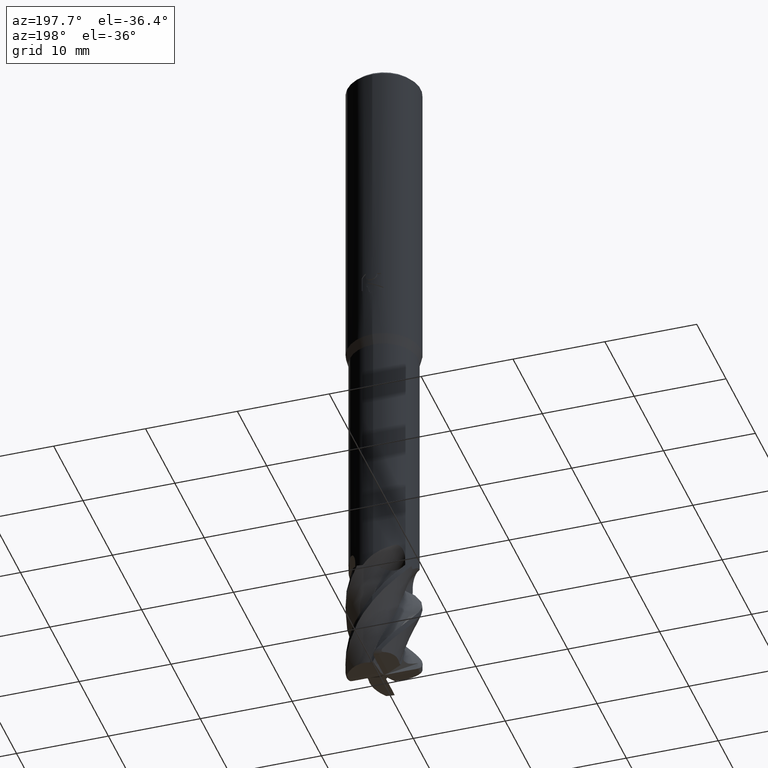
[diagram: clean part render]
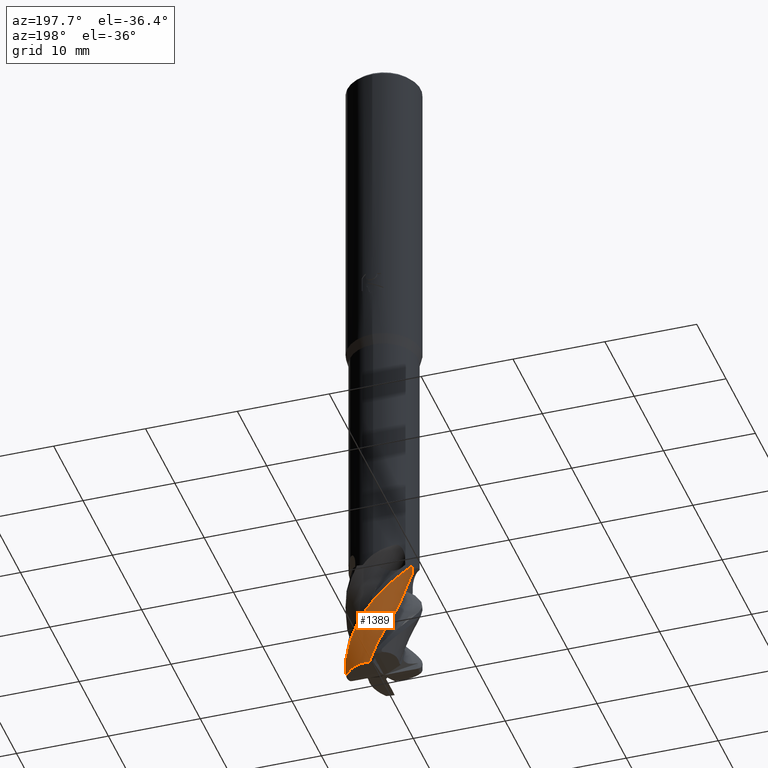
[diagram: same view with one face highlighted and labeled with its STEP entity id]
A machine part, auxiliary view. The second image highlights one B-rep face of the part: STEP entity #1389.
In plain terms, the highlighted face is a freeform B-spline surface patch.
Its self-contained STEP definition (entity closure, byte-faithful):
#539=VERTEX_POINT('',#1529);
#595=VERTEX_POINT('',#1587);
#627=EDGE_CURVE('',#1239,#539,#1622,.T.);
#869=EDGE_CURVE('',#1009,#1399,#1883,.T.);
#927=EDGE_CURVE('',#1377,#1239,#1947,.T.);
#1009=VERTEX_POINT('',#2040);
#1015=EDGE_CURVE('',#595,#1377,#2046,.T.);
#1141=VERTEX_POINT('',#2183);
#1149=EDGE_CURVE('',#1399,#1141,#2191,.T.);
#1199=EDGE_CURVE('',#1009,#539,#2243,.T.);
#1221=EDGE_CURVE('',#1141,#595,#2267,.T.);
#1239=VERTEX_POINT('',#2285);
#1377=VERTEX_POINT('',#2445);
#1389=ADVANCED_FACE('',(#2458),#2459,.T.);
#1399=VERTEX_POINT('',#2469);
#1529=CARTESIAN_POINT('',(-2.02177351185507,-0.841296239243843,-63.0));
#1587=CARTESIAN_POINT('',(-2.59804523836854E-009,3.99994607672928,-68.2988238669397));
#1622=B_SPLINE_CURVE_WITH_KNOTS('',3,(#3459,#3460,#3461,#3462,#3463,#3464,#3465,#3466),.UNSPECIFIED.,.F.,.F.,(4,2,2,4),(0.0,1.24316628872534,2.39651484077598,3.5498294685382),.UNSPECIFIED.);
#1883=B_SPLINE_CURVE_WITH_KNOTS('',3,(#5200,#5201,#5202,#5203,#5204,#5205,#5206,#5207),.UNSPECIFIED.,.F.,.F.,(4,2,2,4),(0.0,1.08865642506025,2.10408348581327,3.23014612927801),.UNSPECIFIED.);
#1947=B_SPLINE_CURVE_WITH_KNOTS('',3,(#5675,#5676,#5677,#5678,#5679,#5680,#5681,#5682),.UNSPECIFIED.,.F.,.F.,(4,2,2,4),(0.0,1.24316628872534,2.39651484077598,3.5498294685382),.UNSPECIFIED.);
#2040=CARTESIAN_POINT('',(0.952778940918722,1.97351294023017,-74.5356994333427));
#2046=B_SPLINE_CURVE_WITH_KNOTS('',3,(#6212,#6213,#6214,#6215,#6216,#6217,#6218,#6219,#6220,#6221,#6222,#6223,#6224,#6225,#6226,#6227,#6228,#6229,#6230,#6231,#6232,#6233,#6234,#6235),.UNSPECIFIED.,.F.,.F.,(4,2,2,2,2,2,2,2,2,2,2,4),(0.0,1.93728681948134,2.38966177563037,3.21723639946385,3.8411802654812,4.15143110464342,4.42447861892624,4.59394454979749,4.72281081796028,4.83222102111246,4.91998672967652,5.0074457602331),.UNSPECIFIED.);
#2183=CARTESIAN_POINT('',(3.85771103230142,1.0573862072393,-74.5));
#2191=B_SPLINE_CURVE_WITH_KNOTS('',3,(#6816,#6817,#6818,#6819,#6820,#6821,#6822,#6823,#6824,#6825,#6826,#6827,#6828,#6829,#6830,#6831,#6832,#6833,#6834,#6835),.UNSPECIFIED.,.F.,.F.,(4,2,2,2,2,2,2,2,2,4),(0.0,0.552379909873413,1.06509052213065,1.39206714543016,1.59261688957467,1.72125507072349,1.86937893980482,1.99092780579738,2.05068872416879,2.10153383045008),.UNSPECIFIED.);
#2243=B_SPLINE_CURVE_WITH_KNOTS('',3,(#6985,#6986,#6987,#6988,#6989,#6990,#6991,#6992,#6993,#6994,#6995,#6996,#6997,#6998,#6999,#7000,#7001,#7002,#7003,#7004,#7005,#7006,#7007,#7008,#7009,#7010,#7011,#7012,#7013,#7014,#7015,#7016,#7017,#7018,#7019,#7020,#7021,#7022,#7023,#7024),.UNSPECIFIED.,.F.,.F.,(4,1,2,2,1,2,1,1,2,1,1,2,1,1,1,2,1,1,2,1,1,2,1,1,1,2,1,1,4),(0.0,0.439032880743634,0.878065761487268,1.75613152297454,2.63419728446181,3.51226304594907,4.39032880743634,5.70742744966724,7.02452609189815,8.34162473412905,9.65872337635995,10.5367891378472,11.4148548993345,12.2929206608218,13.170986422309,14.0490521837963,14.9271179452836,16.2442165875145,17.5613152297454,18.8784138719763,20.1955125142072,21.0735782756944,21.9516440371817,22.829709798669,23.7077755601562,24.5858413216435,25.4639070831308,26.7810057253617,28.0981043675926),.UNSPECIFIED.);
#2267=B_SPLINE_CURVE_WITH_KNOTS('',3,(#7074,#7075,#7076,#7077,#7078,#7079,#7080,#7081,#7082,#7083,#7084,#7085,#7086,#7087,#7088,#7089,#7090,#7091,#7092,#7093,#7094,#7095,#7096,#7097),.UNSPECIFIED.,.F.,.F.,(4,2,2,2,2,2,2,2,2,2,2,4),(0.0,1.93728681948134,2.38966177563037,3.21723639946385,3.8411802654812,4.15143110464342,4.42447861892624,4.59394454979749,4.72281081796028,4.83222102111246,4.91998672967652,5.0074457602331),.UNSPECIFIED.);
#2285=CARTESIAN_POINT('',(-2.63743713482291,-0.362782698581465,-63.0));
#2445=CARTESIAN_POINT('',(-3.57235734302409,1.79929514636751,-63.0));
#2458=FACE_OUTER_BOUND('',#8759,.T.);
#2459=B_SPLINE_SURFACE_WITH_KNOTS('',3,3,((#8760,#8761,#8762,#8763,#8764,#8765,#8766,#8767,#8768,#8769,#8770,#8771,#8772,#8773,#8774,#8775,#8776,#8777,#8778,#8779,#8780,#8781,#8782,#8783,#8784,#8785,#8786,#8787,#8788,#8789,#8790,#8791,#8792,#8793,#8794,#8795,#8796,#8797,#8798,#8799),(#8800,#8801,#8802,#8803,#8804,#8805,#8806,#8807,#8808,#8809,#8810,#8811,#8812,#8813,#8814,#8815,#8816,#8817,#8818,#8819,#8820,#8821,#8822,#8823,#8824,#8825,#8826,#8827,#8828,#8829,#8830,#8831,#8832,#8833,#8834,#8835,#8836,#8837,#8838,#8839),(#8840,#8841,#8842,#8843,#8844,#8845,#8846,#8847,#8848,#8849,#8850,#8851,#8852,#8853,#8854,#8855,#8856,#8857,#8858,#8859,#8860,#8861,#8862,#8863,#8864,#8865,#8866,#8867,#8868,#8869,#8870,#8871,#8872,#8873,#8874,#8875,#8876,#8877,#8878,#8879),(#8880,#8881,#8882,#8883,#8884,#8885,#8886,#8887,#8888,#8889,#8890,#8891,#8892,#8893,#8894,#8895,#8896,#8897,#8898,#8899,#8900,#8901,#8902,#8903,#8904,#8905,#8906,#8907,#8908,#8909,#8910,#8911,#8912,#8913,#8914,#8915,#8916,#8917,#8918,#8919),(#8920,#8921,#8922,#8923,#8924,#8925,#8926,#8927,#8928,#8929,#8930,#8931,#8932,#8933,#8934,#8935,#8936,#8937,#8938,#8939,#8940,#8941,#8942,#8943,#8944,#8945,#8946,#8947,#8948,#8949,#8950,#8951,#8952,#8953,#8954,#8955,#8956,#8957,#8958,#8959),(#8960,#8961,#8962,#8963,#8964,#8965,#8966,#8967,#8968,#8969,#8970,#8971,#8972,#8973,#8974,#8975,#8976,#8977,#8978,#8979,#8980,#8981,#8982,#8983,#8984,#8985,#8986,#8987,#8988,#8989,#8990,#8991,#8992,#8993,#8994,#8995,#8996,#8997,#8998,#8999)),.UNSPECIFIED.,.F.,.F.,.F.,(4,1,1,4),(4,1,2,2,1,2,1,1,2,1,1,2,1,1,1,2,1,1,2,1,1,2,1,1,1,2,1,1,4),(-1.11221997675071,-0.695137485469193,-0.278054994187677,0.0),(0.0,0.439032880743634,0.878065761487268,1.75613152297454,2.63419728446181,3.51226304594907,4.39032880743634,5.70742744966724,7.02452609189815,8.34162473412905,9.65872337635995,10.5367891378472,11.4148548993345,12.2929206608218,13.170986422309,14.0490521837963,14.9271179452836,16.2442165875145,17.5613152297454,18.8784138719763,20.1955125142072,21.0735782756944,21.9516440371817,22.829709798669,23.7077755601562,24.5858413216435,25.4639070831308,26.7810057253617,28.0981043675926),.UNSPECIFIED.);
#2469=CARTESIAN_POINT('',(3.72293093051326,0.996993932438083,-74.8529896927436));
#3459=CARTESIAN_POINT('',(-3.56366989385119,2.14402707640686,-63.0));
#3460=CARTESIAN_POINT('',(-3.59653839750445,1.73094390282993,-63.0));
#3461=CARTESIAN_POINT('',(-3.54840981697179,1.31539089322412,-63.0));
#3462=CARTESIAN_POINT('',(-3.30470197086095,0.554635919955544,-63.0));
#3463=CARTESIAN_POINT('',(-3.12203290532083,0.212781753843216,-63.0));
#3464=CARTESIAN_POINT('',(-2.64367594059889,-0.389183256803379,-63.0));
#3465=CARTESIAN_POINT('',(-2.35192789122173,-0.644342803606159,-63.0));
#3466=CARTESIAN_POINT('',(-2.02177351185507,-0.841296239243843,-63.0));
#5200=CARTESIAN_POINT('',(0.952778940938991,1.97351294021357,-74.5356994333716));
#5201=CARTESIAN_POINT('',(1.30720961290021,2.04757799987166,-74.511634236686));
#5202=CARTESIAN_POINT('',(1.67043789055814,2.0572321850472,-74.5084974018382));
#5203=CARTESIAN_POINT('',(2.35993847755394,1.93925552037634,-74.5468303438856));
#5204=CARTESIAN_POINT('',(2.67572733100251,1.82267529283549,-74.584709555919));
#5205=CARTESIAN_POINT('',(3.28154787893602,1.46485967209924,-74.700970898716));
#5206=CARTESIAN_POINT('',(3.5552084499316,1.21738515390495,-74.7813802440122));
#5207=CARTESIAN_POINT('',(3.7767541407904,0.928998976948296,-74.8750825930267));
#5675=CARTESIAN_POINT('',(-3.56366989385119,2.14402707640686,-63.0));
#5676=CARTESIAN_POINT('',(-3.59653839750445,1.73094390282993,-63.0));
#5677=CARTESIAN_POINT('',(-3.54840981697179,1.31539089322412,-63.0));
#5678=CARTESIAN_POINT('',(-3.30470197086095,0.554635919955544,-63.0));
#5679=CARTESIAN_POINT('',(-3.12203290532083,0.212781753843216,-63.0));
#5680=CARTESIAN_POINT('',(-2.64367594059889,-0.389183256803379,-63.0));
#5681=CARTESIAN_POINT('',(-2.35192789122173,-0.644342803606159,-63.0));
#5682=CARTESIAN_POINT('',(-2.02177351185507,-0.841296239243843,-63.0));
#6212=CARTESIAN_POINT('',(3.85771103230142,1.05738620723929,-74.5));
#6213=CARTESIAN_POINT('',(3.74964676967801,1.45162561306871,-74.0000936893054));
#6214=CARTESIAN_POINT('',(3.58027474018618,1.83237321266755,-73.4911276210475));
#6215=CARTESIAN_POINT('',(3.29771435931284,2.26595803283996,-72.8831146255752));
#6216=CARTESIAN_POINT('',(3.2408537829037,2.34661969245941,-72.7685640362396));
#6217=CARTESIAN_POINT('',(3.07032548675441,2.5702171457404,-72.4463390567113));
#6218=CARTESIAN_POINT('',(2.81634802634202,2.8900833146096,-71.992152280877));
#6219=CARTESIAN_POINT('',(2.06580604276021,3.44876083431224,-70.8575235774745));
#6220=CARTESIAN_POINT('',(1.70775137333358,3.63968005745669,-70.3586530441205));
#6221=CARTESIAN_POINT('',(1.135728313674,3.8406151696471,-69.63118538843));
#6222=CARTESIAN_POINT('',(0.938510827758468,3.8937952384931,-69.3911246173984));
#6223=CARTESIAN_POINT('',(0.556183527181209,3.96527726549848,-68.945535600067));
#6224=CARTESIAN_POINT('',(0.153476436419765,4.03241734332696,-68.4915560964895));
#6225=CARTESIAN_POINT('',(-0.70688773745809,3.95086773147246,-67.4432634608565));
#6226=CARTESIAN_POINT('',(-1.03112782071569,3.87888201892544,-67.0349877150578));
#6227=CARTESIAN_POINT('',(-1.57978239104238,3.68334354186362,-66.3282696240446));
#6228=CARTESIAN_POINT('',(-1.81184541925128,3.57546457647191,-66.0242045653948));
#6229=CARTESIAN_POINT('',(-2.22484923324286,3.33135780768717,-65.4713666629756));
#6230=CARTESIAN_POINT('',(-2.4436218877839,3.18213909987463,-65.175877682663));
#6231=CARTESIAN_POINT('',(-2.86279314779917,2.80477204052103,-64.5060816305059));
#6232=CARTESIAN_POINT('',(-3.03136925629849,2.62121939503193,-64.2037219182236));
#6233=CARTESIAN_POINT('',(-3.32963063495791,2.2300415047218,-63.6014822766402));
#6234=CARTESIAN_POINT('',(-3.46089908854244,2.02059242011861,-63.298913359751));
#6235=CARTESIAN_POINT('',(-3.57235734302408,1.79929514636758,-63.0));
#6816=CARTESIAN_POINT('',(2.72052942918702,1.66044897743041,-74.8900880121276));
#6817=CARTESIAN_POINT('',(2.86814644066026,1.57054552683657,-74.9535640375992));
#6818=CARTESIAN_POINT('',(3.02749346665098,1.46892084315996,-74.9905708615424));
#6819=CARTESIAN_POINT('',(3.32115088396531,1.26869171430261,-75.0057265788445));
#6820=CARTESIAN_POINT('',(3.44739232161943,1.17732461022126,-74.9873274808986));
#6821=CARTESIAN_POINT('',(3.61748752783647,1.06032429881287,-74.92498907394));
#6822=CARTESIAN_POINT('',(3.6748607605063,1.022863810231,-74.8926768275574));
#6823=CARTESIAN_POINT('',(3.7508873541431,0.981947249004593,-74.8299118506335));
#6824=CARTESIAN_POINT('',(3.77822791679126,0.969675219814946,-74.8016502797812));
#6825=CARTESIAN_POINT('',(3.81600710366814,0.960736640291368,-74.7476475404697));
#6826=CARTESIAN_POINT('',(3.82863383588957,0.960150654207291,-74.7251536440294));
#6827=CARTESIAN_POINT('',(3.85030250031919,0.966295672276149,-74.6739895773765));
#6828=CARTESIAN_POINT('',(3.85788434215223,0.973973749187367,-74.6463963505879));
#6829=CARTESIAN_POINT('',(3.86521472452639,0.994671707533307,-74.5965306261346));
#6830=CARTESIAN_POINT('',(3.86603736809081,1.0062439491115,-74.5747605334197));
#6831=CARTESIAN_POINT('',(3.86440879575991,1.02563427440175,-74.5437091107161));
#6832=CARTESIAN_POINT('',(3.86340896337302,1.03237069592283,-74.5337037706905));
#6833=CARTESIAN_POINT('',(3.86082464069195,1.04530439322501,-74.515653566686));
#6834=CARTESIAN_POINT('',(3.85934752849916,1.05144269730628,-74.5075241950872));
#6835=CARTESIAN_POINT('',(3.85761878070986,1.05772203074702,-74.4995745022415));
#6985=CARTESIAN_POINT('',(1.83170567526701,-1.23613335073989,-83.0));
#6986=CARTESIAN_POINT('',(1.81807190279314,-1.2377895840979,-82.8541741025457));
#6987=CARTESIAN_POINT('',(1.82271625522481,-1.20672728851038,-82.5628177782087));
#6988=CARTESIAN_POINT('',(1.88691339274446,-1.10193977056054,-82.2716006431028));
#6989=CARTESIAN_POINT('',(2.01309225989056,-0.880009326314224,-81.8337736308468));
#6990=CARTESIAN_POINT('',(2.06726661479441,-0.741571961981888,-81.5416445104132));
#6991=CARTESIAN_POINT('',(2.13931761054456,-0.492002390065836,-80.9583762189255));
#6992=CARTESIAN_POINT('',(2.18934948186274,-0.23615170090708,-80.3752134236371));
#6993=CARTESIAN_POINT('',(2.19461392158264,0.0351354785264084,-79.7921044073619));
#6994=CARTESIAN_POINT('',(2.17398519802234,0.314320511967685,-79.2087722863488));
#6995=CARTESIAN_POINT('',(2.11436880880064,0.648308072652243,-78.4793497458805));
#6996=CARTESIAN_POINT('',(1.90871536392046,1.12471810574497,-77.312590068964));
#6997=CARTESIAN_POINT('',(1.65997622250884,1.4428643393216,-76.438061733193));
#6998=CARTESIAN_POINT('',(1.35441896186937,1.73675141912832,-75.5630251478354));
#6999=CARTESIAN_POINT('',(1.02281854264093,1.96823735719612,-74.6875307598658));
#7000=CARTESIAN_POINT('',(0.532774139746374,2.14303395844564,-73.5210143615493));
#7001=CARTESIAN_POINT('',(0.194198857834362,2.18571141378913,-72.7921362978877));
#7002=CARTESIAN_POINT('',(-0.0878361312475617,2.19452375398434,-72.2088115650719));
#7003=CARTESIAN_POINT('',(-0.360431320792964,2.17480937276935,-71.6252634432));
#7004=CARTESIAN_POINT('',(-0.740221703624163,2.07439449275861,-70.7500705620949));
#7005=CARTESIAN_POINT('',(-1.09638797289779,1.90890820649805,-69.8752721481262));
#7006=CARTESIAN_POINT('',(-1.32038318914499,1.75262698830087,-69.2921597192466));
#7007=CARTESIAN_POINT('',(-1.53567838762889,1.57017724675793,-68.7088239899177));
#7008=CARTESIAN_POINT('',(-1.77199226154813,1.32349098648404,-67.9793696160966));
#7009=CARTESIAN_POINT('',(-2.03563948115146,0.8747930619271,-66.8125270380495));
#7010=CARTESIAN_POINT('',(-2.14498848700632,0.486542977952101,-65.9379878174441));
#7011=CARTESIAN_POINT('',(-2.20138109026099,0.0671297333498575,-65.0629938942943));
#7012=CARTESIAN_POINT('',(-2.19235989369973,-0.336864386049752,-64.1875398525262));
#7013=CARTESIAN_POINT('',(-2.04398657831165,-0.835884465748461,-63.0210307890431));
#7014=CARTESIAN_POINT('',(-1.87834134008742,-1.13448045731937,-62.2921241783026));
#7015=CARTESIAN_POINT('',(-1.71881029686207,-1.36731068210093,-61.7087662846029));
#7016=CARTESIAN_POINT('',(-1.54191616645983,-1.57550059972729,-61.1251983335048));
#7017=CARTESIAN_POINT('',(-1.23676095566173,-1.82241969877268,-60.2500244897498));
#7018=CARTESIAN_POINT('',(-0.892888657253481,-2.0121081769327,-59.3752934999789));
#7019=CARTESIAN_POINT('',(-0.634071119678672,-2.10078703375201,-58.7922523483994));
#7020=CARTESIAN_POINT('',(-0.358890110032327,-2.16699866420342,-58.2089944758945));
#7021=CARTESIAN_POINT('',(-0.0192641924077827,-2.21207933699895,-57.4795669727126));
#7022=CARTESIAN_POINT('',(0.49745799484223,-2.15908810072524,-56.3125405604053));
#7023=CARTESIAN_POINT('',(0.870104756804534,-2.0191689397977,-55.4377984901958));
#7024=CARTESIAN_POINT('',(1.05258971714799,-1.92006749227673,-55.0002396351413));
#7074=CARTESIAN_POINT('',(3.85771103230142,1.05738620723929,-74.5));
#7075=CARTESIAN_POINT('',(3.74964676967801,1.45162561306871,-74.0000936893054));
#7076=CARTESIAN_POINT('',(3.58027474018618,1.83237321266755,-73.4911276210475));
#7077=CARTESIAN_POINT('',(3.29771435931284,2.26595803283996,-72.8831146255752));
#7078=CARTESIAN_POINT('',(3.2408537829037,2.34661969245941,-72.7685640362396));
#7079=CARTESIAN_POINT('',(3.07032548675441,2.5702171457404,-72.4463390567113));
#7080=CARTESIAN_POINT('',(2.81634802634202,2.8900833146096,-71.992152280877));
#7081=CARTESIAN_POINT('',(2.06580604276021,3.44876083431224,-70.8575235774745));
#7082=CARTESIAN_POINT('',(1.70775137333358,3.63968005745669,-70.3586530441205));
#7083=CARTESIAN_POINT('',(1.135728313674,3.8406151696471,-69.63118538843));
#7084=CARTESIAN_POINT('',(0.938510827758468,3.8937952384931,-69.3911246173984));
#7085=CARTESIAN_POINT('',(0.556183527181209,3.96527726549848,-68.945535600067));
#7086=CARTESIAN_POINT('',(0.153476436419765,4.03241734332696,-68.4915560964895));
#7087=CARTESIAN_POINT('',(-0.70688773745809,3.95086773147246,-67.4432634608565));
#7088=CARTESIAN_POINT('',(-1.03112782071569,3.87888201892544,-67.0349877150578));
#7089=CARTESIAN_POINT('',(-1.57978239104238,3.68334354186362,-66.3282696240446));
#7090=CARTESIAN_POINT('',(-1.81184541925128,3.57546457647191,-66.0242045653948));
#7091=CARTESIAN_POINT('',(-2.22484923324286,3.33135780768717,-65.4713666629756));
#7092=CARTESIAN_POINT('',(-2.4436218877839,3.18213909987463,-65.175877682663));
#7093=CARTESIAN_POINT('',(-2.86279314779917,2.80477204052103,-64.5060816305059));
#7094=CARTESIAN_POINT('',(-3.03136925629849,2.62121939503193,-64.2037219182236));
#7095=CARTESIAN_POINT('',(-3.32963063495791,2.2300415047218,-63.6014822766402));
#7096=CARTESIAN_POINT('',(-3.46089908854244,2.02059242011861,-63.298913359751));
#7097=CARTESIAN_POINT('',(-3.57235734302408,1.79929514636758,-63.0));
#8759=EDGE_LOOP('',(#11236,#11237,#11238,#11239,#11240,#11241,#11242));
#8760=CARTESIAN_POINT('',(0.170304604727883,-4.15651252143689,-83.0));
#8761=CARTESIAN_POINT('',(0.154210242727548,-4.15676892670255,-82.8541700844363));
#8762=CARTESIAN_POINT('',(0.209523727899493,-4.15562483607312,-82.5625220401028));
#8763=CARTESIAN_POINT('',(0.442853523972597,-4.13836939985323,-82.2708781220468));
#8764=CARTESIAN_POINT('',(0.921306972990124,-4.0678284817884,-81.8333563516772));
#8765=CARTESIAN_POINT('',(1.19232112564926,-3.99169227389445,-81.5416638018503));
#8766=CARTESIAN_POINT('',(1.65577071237822,-3.82291319071121,-80.9583350399687));
#8767=CARTESIAN_POINT('',(2.10427211047267,-3.61329091740189,-80.3750113981913));
#8768=CARTESIAN_POINT('',(2.5246076582793,-3.31534053892048,-79.7916900625163));
#8769=CARTESIAN_POINT('',(2.925959826272,-2.9673084033052,-79.2083559884261));
#8770=CARTESIAN_POINT('',(3.36860920888073,-2.49992472884865,-78.479173717222));
#8771=CARTESIAN_POINT('',(3.87036589757219,-1.65204719038241,-77.312501023173));
#8772=CARTESIAN_POINT('',(4.07707142689905,-0.913225561306203,-76.4375280236327));
#8773=CARTESIAN_POINT('',(4.1765809275134,-0.114967529240872,-75.5625254817898));
#8774=CARTESIAN_POINT('',(4.15752407826287,0.651943091671326,-74.6874963190081));
#8775=CARTESIAN_POINT('',(3.87809779097972,1.59972482719409,-73.5208374924055));
#8776=CARTESIAN_POINT('',(3.56091954372779,2.16478665765027,-72.7916869961086));
#8777=CARTESIAN_POINT('',(3.25401031519312,2.60351845151079,-72.2083537417935));
#8778=CARTESIAN_POINT('',(2.91635436596338,2.99708798486999,-71.6250075661316));
#8779=CARTESIAN_POINT('',(2.33708651069799,3.46680282946825,-70.7499958159636));
#8780=CARTESIAN_POINT('',(1.68433362491881,3.82751733132171,-69.8750069158249));
#8781=CARTESIAN_POINT('',(1.19282746707869,3.99294546033981,-69.2916859845093));
#8782=CARTESIAN_POINT('',(0.670972280874595,4.11299375634761,-68.7083521120204));
#8783=CARTESIAN_POINT('',(0.0280670918421341,4.19511630124148,-67.9791682715022));
#8784=CARTESIAN_POINT('',(-0.955220905290088,4.09837007261366,-66.8124905911891));
#8785=CARTESIAN_POINT('',(-1.67245182726691,3.82868019011448,-65.9375167094195));
#8786=CARTESIAN_POINT('',(-2.37405117325486,3.43808057423096,-65.0625165542873));
#8787=CARTESIAN_POINT('',(-2.98127995998127,2.97019996468435,-64.1874898122224));
#8788=CARTESIAN_POINT('',(-3.58149869460806,2.18449731870788,-63.0208315615416));
#8789=CARTESIAN_POINT('',(-3.85023254156484,1.5944227637812,-62.2916793134769));
#8790=CARTESIAN_POINT('',(-4.02297490391,1.08749307556035,-61.7083439526461));
#8791=CARTESIAN_POINT('',(-4.14099537609584,0.582760189447271,-61.1249963351636));
#8792=CARTESIAN_POINT('',(-4.17784942245168,-0.161543976817411,-60.2499852845867));
#8793=CARTESIAN_POINT('',(-4.08346414081249,-0.901319668873798,-59.3750002829367));
#8794=CARTESIAN_POINT('',(-3.92640343042626,-1.3964840386558,-58.7916839793687));
#8795=CARTESIAN_POINT('',(-3.71428220152244,-1.88985839272763,-58.2083554875879));
#8796=CARTESIAN_POINT('',(-3.39955143193267,-2.45856583546626,-57.4791747580688));
#8797=CARTESIAN_POINT('',(-2.74097245550957,-3.19246370180782,-56.3124914932851));
#8798=CARTESIAN_POINT('',(-2.10819027021498,-3.60643704505467,-55.4375129402571));
#8799=CARTESIAN_POINT('',(-1.75067342368867,-3.77225099562874,-55.0000138769393));
#8800=CARTESIAN_POINT('',(0.559112466708611,-3.94536664948759,-83.0));
#8801=CARTESIAN_POINT('',(0.543196007571147,-3.94595064628673,-82.8541710130093));
#8802=CARTESIAN_POINT('',(0.594922015624464,-3.93793846804385,-82.5625903842748));
#8803=CARTESIAN_POINT('',(0.815419520035849,-3.89913701039558,-82.2710450944047));
#8804=CARTESIAN_POINT('',(1.26499600109144,-3.78717812074856,-81.833452783646));
#8805=CARTESIAN_POINT('',(1.51608837223096,-3.68900176999011,-81.5416593429516));
#8806=CARTESIAN_POINT('',(1.94137798612009,-3.48398135626333,-80.9583445570053));
#8807=CARTESIAN_POINT('',(2.34852622060606,-3.24149183588851,-80.3750580853988));
#8808=CARTESIAN_POINT('',(2.72058525889595,-2.91767275475765,-79.7917858161176));
#8809=CARTESIAN_POINT('',(3.06995597148856,-2.54800963588012,-79.2084521937968));
#8810=CARTESIAN_POINT('',(3.4471578419526,-2.06063393966166,-78.479214398369));
#8811=CARTESIAN_POINT('',(3.84397495070122,-1.20513202300133,-77.3125216003117));
#8812=CARTESIAN_POINT('',(3.97050137383369,-0.481703295676922,-76.4376513643988));
#8813=CARTESIAN_POINT('',(3.98964870776282,0.28829933415758,-75.5626409509275));
#8814=CARTESIAN_POINT('',(3.8984193598936,1.01705027289851,-74.687504275473));
#8815=CARTESIAN_POINT('',(3.54170793146605,1.89301795476161,-73.5208783683327));
#8816=CARTESIAN_POINT('',(3.18582659052607,2.40114151078816,-72.7917908299561));
#8817=CARTESIAN_POINT('',(2.85181648293337,2.79006044196323,-72.208459541741));
#8818=CARTESIAN_POINT('',(2.49271058148612,3.13288441331078,-71.6250666987934));
#8819=CARTESIAN_POINT('',(1.89612440964803,3.52496837681688,-70.7500130899503));
#8820=CARTESIAN_POINT('',(1.23996770381086,3.80621530502726,-69.8750682131881));
#8821=CARTESIAN_POINT('',(0.756019614194456,3.91706798988143,-69.2917954582065));
#8822=CARTESIAN_POINT('',(0.247425233232465,3.98197529038824,-68.7084611664757));
#8823=CARTESIAN_POINT('',(-0.372860073107469,3.99906113853633,-67.9792148020716));
#8824=CARTESIAN_POINT('',(-1.30012410366406,3.81293032563823,-66.8124990241089));
#8825=CARTESIAN_POINT('',(-1.95760799199352,3.48772746169429,-65.9376255638311));
#8826=CARTESIAN_POINT('',(-2.58904764125313,3.04905807906089,-65.0626268832739));
#8827=CARTESIAN_POINT('',(-3.12291195526262,2.54548838419134,-64.187501356164));
#8828=CARTESIAN_POINT('',(-3.61947840358145,1.73981619980283,-63.0208775989161));
#8829=CARTESIAN_POINT('',(-3.81936943712225,1.1521488827454,-62.2917821333736));
#8830=CARTESIAN_POINT('',(-3.93589687319613,0.652779853159443,-61.7084415392471));
#8831=CARTESIAN_POINT('',(-4.00032077093464,0.160714532729031,-61.1250430289101));
#8832=CARTESIAN_POINT('',(-3.96435083198269,-0.55173254612133,-60.249994352584));
#8833=CARTESIAN_POINT('',(-3.80382637881013,-1.2473256823751,-59.3750680424608));
#8834=CARTESIAN_POINT('',(-3.60713072729915,-1.70410002122283,-58.7918153196501));
#8835=CARTESIAN_POINT('',(-3.35826535825855,-2.15408196965846,-58.2085031638474));
#8836=CARTESIAN_POINT('',(-3.0043538713905,-2.66595534012522,-57.4792653854182));
#8837=CARTESIAN_POINT('',(-2.30694550525982,-3.30198420834906,-56.3125028313736));
#8838=CARTESIAN_POINT('',(-1.6647578553258,-3.63592647078397,-55.4375789255772));
#8839=CARTESIAN_POINT('',(-1.30840348931571,-3.75994509429423,-55.000066048961));
#8840=CARTESIAN_POINT('',(1.24718889255746,-3.35869664387462,-83.0));
#8841=CARTESIAN_POINT('',(1.23176673667378,-3.35986038896509,-82.8541726616025));
#8842=CARTESIAN_POINT('',(1.27341405814628,-3.3396334869126,-82.5627117239106));
#8843=CARTESIAN_POINT('',(1.45913847485402,-3.26318055409895,-82.2713415406297));
#8844=CARTESIAN_POINT('',(1.83345398424911,-3.08062505666405,-81.8336239908523));
#8845=CARTESIAN_POINT('',(2.03538906317148,-2.9468085987261,-81.5416514291636));
#8846=CARTESIAN_POINT('',(2.36904678971328,-2.68546941962495,-80.9583614511165));
#8847=CARTESIAN_POINT('',(2.67960594988501,-2.39475837256661,-80.3751409758429));
#8848=CARTESIAN_POINT('',(2.94419381409185,-2.03964013213078,-79.7919558196445));
#8849=CARTESIAN_POINT('',(3.18047833323297,-1.6487184648862,-79.2086229981977));
#8850=CARTESIAN_POINT('',(3.41836255131359,-1.14905831082551,-78.4792866202565));
#8851=CARTESIAN_POINT('',(3.60213158105024,-0.322708400297972,-77.3125581362009));
#8852=CARTESIAN_POINT('',(3.57485536324545,0.336021599740302,-76.4378703395951));
#8853=CARTESIAN_POINT('',(3.44527576482719,1.01552998515959,-75.5628459637698));
#8854=CARTESIAN_POINT('',(3.2258845816868,1.63744826180198,-74.6875184102004));
#8855=CARTESIAN_POINT('',(2.74502691651022,2.33712974638419,-73.5209509328191));
#8856=CARTESIAN_POINT('',(2.33584908023133,2.71503345097304,-72.79197517376));
#8857=CARTESIAN_POINT('',(1.96872613206575,2.99288806136278,-72.208647386101));
#8858=CARTESIAN_POINT('',(1.58820076219627,3.22517352565636,-71.6251716851896));
#8859=CARTESIAN_POINT('',(0.989830506028528,3.45471084294941,-70.7500437566908));
#8860=CARTESIAN_POINT('',(0.360488225608428,3.575625519679,-69.8751770307359));
#8861=CARTESIAN_POINT('',(-0.085258660959713,3.58055440098389,-69.2919898351638));
#8862=CARTESIAN_POINT('',(-0.544010179587466,3.54081972357852,-68.7086547689181));
#8863=CARTESIAN_POINT('',(-1.09155295577728,3.43743709335526,-67.9792974077458));
#8864=CARTESIAN_POINT('',(-1.86898352858122,3.09628740941769,-66.8125139610039));
#8865=CARTESIAN_POINT('',(-2.38351984571737,2.68536564579016,-65.9378188855511));
#8866=CARTESIAN_POINT('',(-2.85434120836644,2.18026509425247,-65.0628227043101));
#8867=CARTESIAN_POINT('',(-3.2264172991807,1.63637469981831,-64.1875219176743));
#8868=CARTESIAN_POINT('',(-3.5072867151386,0.834626259837972,-63.0209593471654));
#8869=CARTESIAN_POINT('',(-3.57054773830845,0.280897341941009,-62.291964636854));
#8870=CARTESIAN_POINT('',(-3.57787438580141,-0.179571687812066,-61.708614841585));
#8871=CARTESIAN_POINT('',(-3.54049334815173,-0.623633695223791,-61.1251258876922));
#8872=CARTESIAN_POINT('',(-3.3723925010964,-1.24157427860698,-60.2500104238524));
#8873=CARTESIAN_POINT('',(-3.098317715995,-1.82084477970175,-59.3751883550645));
#8874=CARTESIAN_POINT('',(-2.83861522340857,-2.18409151066266,-58.7920485214406));
#8875=CARTESIAN_POINT('',(-2.53463937009648,-2.53176680439332,-58.2087653337947));
#8876=CARTESIAN_POINT('',(-2.12643235706134,-2.91342661913508,-57.4794263171853));
#8877=CARTESIAN_POINT('',(-1.39279149508771,-3.33734287078266,-56.3125229719776));
#8878=CARTESIAN_POINT('',(-0.765656623489045,-3.50728710489406,-55.4376960903196));
#8879=CARTESIAN_POINT('',(-0.429308875359153,-3.54822944908745,-55.0001586762479));
#8880=CARTESIAN_POINT('',(1.76895577092612,-2.27180685316627,-83.0));
#8881=CARTESIAN_POINT('',(1.75444938299658,-2.27341021514057,-82.8541739277214));
#8882=CARTESIAN_POINT('',(1.77721166643778,-2.24373945966857,-82.5628049122518));
#8883=CARTESIAN_POINT('',(1.90020629281433,-2.14017833064829,-82.2715692101832));
#8884=CARTESIAN_POINT('',(2.1446388124136,-1.91223105607222,-81.8337554772485));
#8885=CARTESIAN_POINT('',(2.26739699917858,-1.76152989566074,-81.5416453496056));
#8886=CARTESIAN_POINT('',(2.4589304082388,-1.48104810027898,-80.9583744275262));
#8887=CARTESIAN_POINT('',(2.62569750425189,-1.18374301238934,-80.3752046346941));
#8888=CARTESIAN_POINT('',(2.74237143391804,-0.848537931365264,-79.7920863812414));
#8889=CARTESIAN_POINT('',(2.82932234763224,-0.492802295779826,-79.2087541757344));
#8890=CARTESIAN_POINT('',(2.89074643905799,-0.0534398910899905,-78.479342086906));
#8891=CARTESIAN_POINT('',(2.83056846785681,0.622266955479762,-77.3125861948947));
#8892=CARTESIAN_POINT('',(2.65076874377564,1.11903355011284,-76.4380385146576));
#8893=CARTESIAN_POINT('',(2.38878981773251,1.60787710520906,-75.5630034098365));
#8894=CARTESIAN_POINT('',(2.07089491231098,2.03032575256397,-74.6875292577415));
#8895=CARTESIAN_POINT('',(1.53395343771168,2.44804597642345,-73.521006669318));
#8896=CARTESIAN_POINT('',(1.13016573620448,2.63842102322545,-72.7921167491209));
#8897=CARTESIAN_POINT('',(0.782686483989743,2.7630018473811,-72.2087916497766));
#8898=CARTESIAN_POINT('',(0.435774529045564,2.84897232076571,-71.6252523121419));
#8899=CARTESIAN_POINT('',(-0.0769480358895595,2.87940749543165,-70.7500673091956));
#8900=CARTESIAN_POINT('',(-0.586978539036442,2.81937079861786,-69.8752606066695));
#8901=CARTESIAN_POINT('',(-0.928929980478293,2.7158222937499,-69.2921391113216));
#8902=CARTESIAN_POINT('',(-1.27038785476927,2.57546264295721,-68.7088034593963));
#8903=CARTESIAN_POINT('',(-1.66417223693525,2.36453559901595,-67.9793608555696));
#8904=CARTESIAN_POINT('',(-2.17520624296214,1.91537737639415,-66.8125254544979));
#8905=CARTESIAN_POINT('',(-2.4691817714004,1.47720073438293,-65.9379673196882));
#8906=CARTESIAN_POINT('',(-2.70832336138097,0.977903622586959,-65.0629731302514));
#8907=CARTESIAN_POINT('',(-2.8614008308788,0.472276518864418,-64.187537673989));
#8908=CARTESIAN_POINT('',(-2.88146367397261,-0.2081499600897,-63.0210221210964));
#8909=CARTESIAN_POINT('',(-2.79651446997004,-0.646689358206295,-62.292104827962));
#8910=CARTESIAN_POINT('',(-2.69174678312886,-1.0007405960166,-61.7087479079436));
#8911=CARTESIAN_POINT('',(-2.55620512194798,-1.33128411710937,-61.1251895445376));
#8912=CARTESIAN_POINT('',(-2.27810268135198,-1.76263577011626,-60.2500227824086));
#8913=CARTESIAN_POINT('',(-1.92846234275129,-2.13876319952673,-59.375280750363));
#8914=CARTESIAN_POINT('',(-1.64248894180434,-2.35396130838911,-58.7922276139991));
#8915=CARTESIAN_POINT('',(-1.32661082146069,-2.5471529851094,-58.2089666847625));
#8916=CARTESIAN_POINT('',(-0.922572784352755,-2.74075201420978,-57.4795499019426));
#8917=CARTESIAN_POINT('',(-0.259368337705097,-2.8865349461251,-56.3125384280343));
#8918=CARTESIAN_POINT('',(0.260811172164625,-2.86470462077031,-55.4377860640782));
#8919=CARTESIAN_POINT('',(0.527886274931397,-2.81518952404198,-55.0002298136335));
#8920=CARTESIAN_POINT('',(1.84315399683015,-1.53087183265994,-83.0));
#8921=CARTESIAN_POINT('',(1.82927189002101,-1.53253771258903,-82.8541741224235));
#8922=CARTESIAN_POINT('',(1.83908064073354,-1.50135824993786,-82.5628192389574));
#8923=CARTESIAN_POINT('',(1.91994487325053,-1.39525996611728,-82.2716042118159));
#8924=CARTESIAN_POINT('',(2.07940548016577,-1.16829354776217,-81.8337756920056));
#8925=CARTESIAN_POINT('',(2.15263494361,-1.02445343036872,-81.5416444150829));
#8926=CARTESIAN_POINT('',(2.25761338802048,-0.762770882370451,-80.9583764223652));
#8927=CARTESIAN_POINT('',(2.33949836754962,-0.491902518128065,-80.3752144214796));
#8928=CARTESIAN_POINT('',(2.37447606674746,-0.199393377292587,-79.7921064539448));
#8929=CARTESIAN_POINT('',(2.38212106509442,0.1044791509085,-79.2087743425695));
#8930=CARTESIAN_POINT('',(2.35377353119584,0.47168746467348,-78.4793506163942));
#8931=CARTESIAN_POINT('',(2.18365310765914,1.00857561339932,-77.3125905092166));
#8932=CARTESIAN_POINT('',(1.94937954903894,1.37919325621572,-76.4380643684005));
#8933=CARTESIAN_POINT('',(1.65065320876065,1.72945786500594,-75.5630276167917));
#8934=CARTESIAN_POINT('',(1.31754593948691,2.01534937775153,-74.6875309343456));
#8935=CARTESIAN_POINT('',(0.80738660005957,2.25754157791533,-73.5210152338908));
#8936=CARTESIAN_POINT('',(0.446200092433929,2.34016090540786,-72.7921385188991));
#8937=CARTESIAN_POINT('',(0.142388476293522,2.37987653475022,-72.2088138246343));
#8938=CARTESIAN_POINT('',(-0.154208888913749,2.38796286387251,-71.6252647040638));
#8939=CARTESIAN_POINT('',(-0.575291951178273,2.32081482187867,-70.7500709321794));
#8940=CARTESIAN_POINT('',(-0.977956000237738,2.18081999953954,-69.8752734619459));
#8941=CARTESIAN_POINT('',(-1.23680515148751,2.03613015692415,-69.2921620594033));
#8942=CARTESIAN_POINT('',(-1.48897566076501,1.86202985462446,-68.7088263204366));
#8943=CARTESIAN_POINT('',(-1.77084266131403,1.62101950767621,-67.9793706110422));
#8944=CARTESIAN_POINT('',(-2.10445721116102,1.16521675987824,-66.8125272158402));
#8945=CARTESIAN_POINT('',(-2.26462542991524,0.757638344354624,-65.9379901453275));
#8946=CARTESIAN_POINT('',(-2.37046154502151,0.310475433957599,-65.0629962510909));
#8947=CARTESIAN_POINT('',(-2.40442916009597,-0.126838504980619,-64.1875400974676));
#8948=CARTESIAN_POINT('',(-2.29858832889914,-0.681923229277207,-63.0210317699178));
#8949=CARTESIAN_POINT('',(-2.15182478769516,-1.02238122137399,-62.2921263778072));
#8950=CARTESIAN_POINT('',(-2.00436749683283,-1.29104617020224,-61.7087683684545));
#8951=CARTESIAN_POINT('',(-1.83572154230223,-1.53501310036189,-61.1251993333082));
#8952=CARTESIAN_POINT('',(-1.5330192334559,-1.83486683532725,-60.2500246830945));
#8953=CARTESIAN_POINT('',(-1.18225898191023,-2.07713219146672,-59.3752949419992));
#8954=CARTESIAN_POINT('',(-0.912192670220487,-2.20083496668871,-58.7922551663164));
#8955=CARTESIAN_POINT('',(-0.621919371122298,-2.30181909056654,-58.2089976214948));
#8956=CARTESIAN_POINT('',(-0.259885474843854,-2.38709637950359,-57.4795689197481));
#8957=CARTESIAN_POINT('',(0.303877407025182,-2.38620420546495,-56.312540802864));
#8958=CARTESIAN_POINT('',(0.721587250126157,-2.27553038052729,-55.4377998944195));
#8959=CARTESIAN_POINT('',(0.929398905659236,-2.18807096381225,-55.0002407502328));
#8960=CARTESIAN_POINT('',(1.83170567526701,-1.23613335073989,-83.0));
#8961=CARTESIAN_POINT('',(1.81807190279314,-1.2377895840979,-82.8541741025457));
#8962=CARTESIAN_POINT('',(1.82271625522481,-1.20672728851038,-82.5628177782087));
#8963=CARTESIAN_POINT('',(1.88691339274446,-1.10193977056054,-82.2716006431028));
#8964=CARTESIAN_POINT('',(2.01309225989056,-0.880009326314224,-81.8337736308468));
#8965=CARTESIAN_POINT('',(2.06726661479441,-0.741571961981888,-81.5416445104132));
#8966=CARTESIAN_POINT('',(2.13931761054456,-0.492002390065836,-80.9583762189255));
#8967=CARTESIAN_POINT('',(2.18934948186274,-0.23615170090708,-80.3752134236371));
#8968=CARTESIAN_POINT('',(2.19461392158264,0.0351354785264084,-79.7921044073619));
#8969=CARTESIAN_POINT('',(2.17398519802234,0.314320511967685,-79.2087722863488));
#8970=CARTESIAN_POINT('',(2.11436880880064,0.648308072652243,-78.4793497458805));
#8971=CARTESIAN_POINT('',(1.90871536392046,1.12471810574497,-77.312590068964));
#8972=CARTESIAN_POINT('',(1.65997622250884,1.4428643393216,-76.438061733193));
#8973=CARTESIAN_POINT('',(1.35441896186937,1.73675141912832,-75.5630251478354));
#8974=CARTESIAN_POINT('',(1.02281854264093,1.96823735719612,-74.6875307598658));
#8975=CARTESIAN_POINT('',(0.532774139746374,2.14303395844564,-73.5210143615493));
#8976=CARTESIAN_POINT('',(0.194198857834362,2.18571141378913,-72.7921362978877));
#8977=CARTESIAN_POINT('',(-0.0878361312475617,2.19452375398434,-72.2088115650719));
#8978=CARTESIAN_POINT('',(-0.360431320792964,2.17480937276935,-71.6252634432));
#8979=CARTESIAN_POINT('',(-0.740221703624163,2.07439449275861,-70.7500705620949));
#8980=CARTESIAN_POINT('',(-1.09638797289779,1.90890820649805,-69.8752721481262));
#8981=CARTESIAN_POINT('',(-1.32038318914499,1.75262698830087,-69.2921597192466));
#8982=CARTESIAN_POINT('',(-1.53567838762889,1.57017724675793,-68.7088239899177));
#8983=CARTESIAN_POINT('',(-1.77199226154813,1.32349098648404,-67.9793696160966));
#8984=CARTESIAN_POINT('',(-2.03563948115146,0.8747930619271,-66.8125270380495));
#8985=CARTESIAN_POINT('',(-2.14498848700632,0.486542977952101,-65.9379878174441));
#8986=CARTESIAN_POINT('',(-2.20138109026099,0.0671297333498575,-65.0629938942943));
#8987=CARTESIAN_POINT('',(-2.19235989369973,-0.336864386049752,-64.1875398525262));
#8988=CARTESIAN_POINT('',(-2.04398657831165,-0.835884465748461,-63.0210307890431));
#8989=CARTESIAN_POINT('',(-1.87834134008742,-1.13448045731937,-62.2921241783026));
#8990=CARTESIAN_POINT('',(-1.71881029686207,-1.36731068210093,-61.7087662846029));
#8991=CARTESIAN_POINT('',(-1.54191616645983,-1.57550059972729,-61.1251983335048));
#8992=CARTESIAN_POINT('',(-1.23676095566173,-1.82241969877268,-60.2500244897498));
#8993=CARTESIAN_POINT('',(-0.892888657253481,-2.0121081769327,-59.3752934999789));
#8994=CARTESIAN_POINT('',(-0.634071119678672,-2.10078703375201,-58.7922523483994));
#8995=CARTESIAN_POINT('',(-0.358890110032327,-2.16699866420342,-58.2089944758945));
#8996=CARTESIAN_POINT('',(-0.0192641924077827,-2.21207933699895,-57.4795669727126));
#8997=CARTESIAN_POINT('',(0.49745799484223,-2.15908810072524,-56.3125405604053));
#8998=CARTESIAN_POINT('',(0.870104756804534,-2.0191689397977,-55.4377984901958));
#8999=CARTESIAN_POINT('',(1.05258971714799,-1.92006749227673,-55.0002396351413));
#11236=ORIENTED_EDGE('',*,*,#1221,.F.);
#11237=ORIENTED_EDGE('',*,*,#1149,.F.);
#11238=ORIENTED_EDGE('',*,*,#869,.F.);
#11239=ORIENTED_EDGE('',*,*,#1199,.T.);
#11240=ORIENTED_EDGE('',*,*,#627,.F.);
#11241=ORIENTED_EDGE('',*,*,#927,.F.);
#11242=ORIENTED_EDGE('',*,*,#1015,.F.);